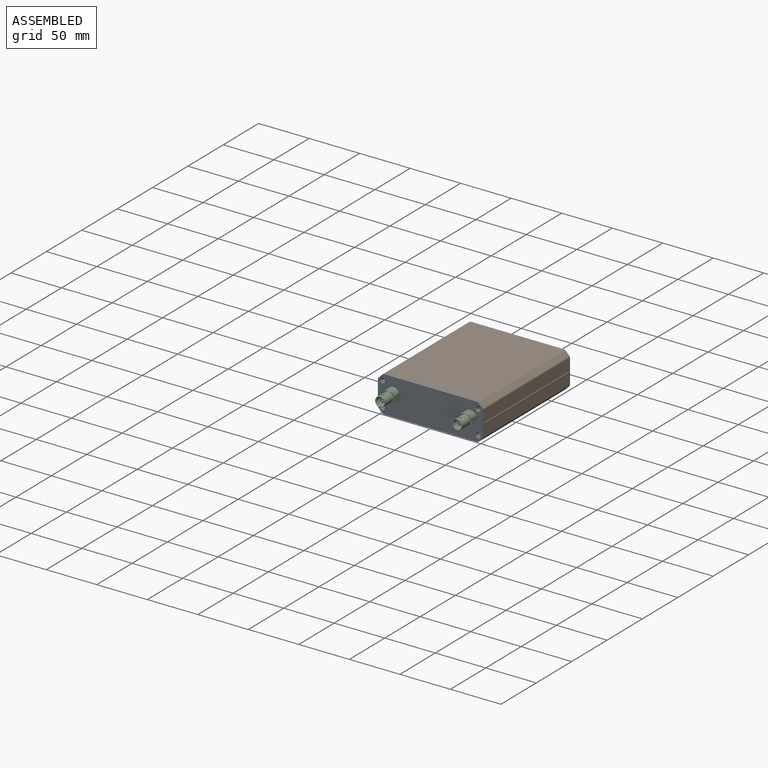
[diagram: assembled view]
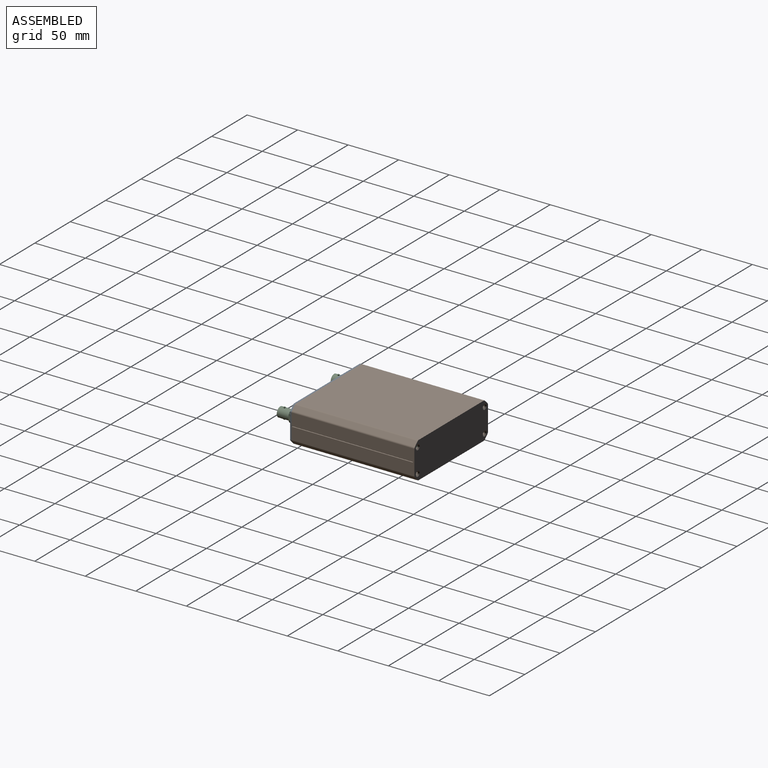
[diagram: assembled view, second angle]
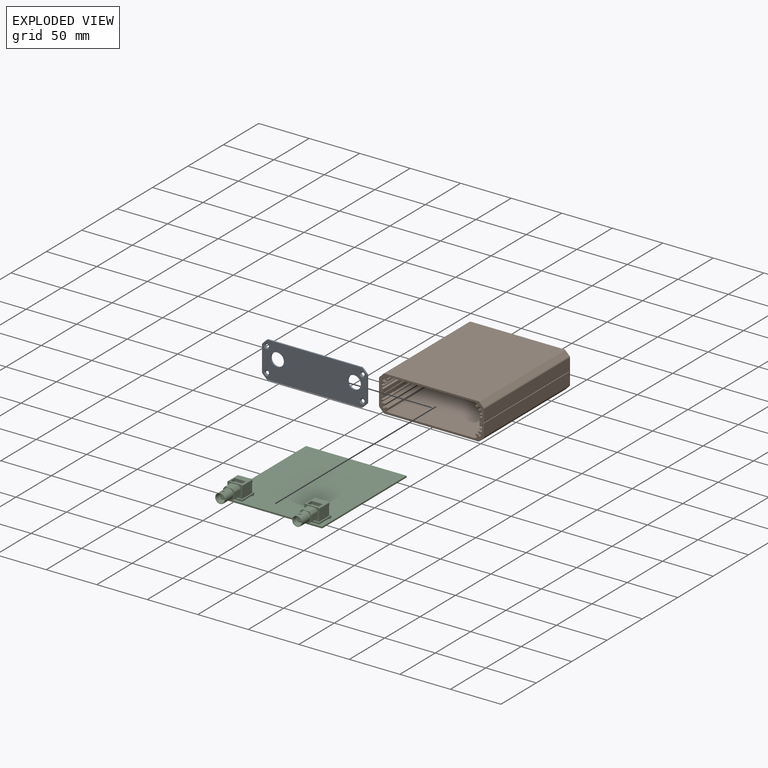
[diagram: exploded view]
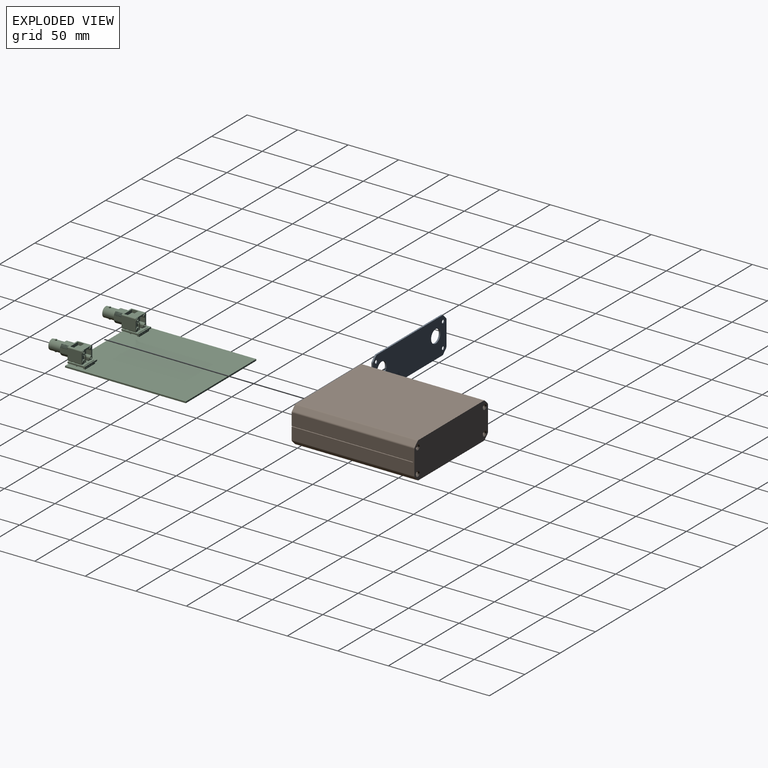
[diagram: exploded view, second angle]
FCSTD DOCUMENT  (FreeCAD 1.0R39319 (Git))
Label: K93-10436-H7-L120_reference_BNC_slot1_up
License: All rights reserved
LicenseURL: https://en.wikipedia.org/wiki/All_rights_reserved
objects: App::FeaturePython×7, App::Link×3, Assembly::JointGroup×1, Assembly::AssemblyObject×1
EXTERNAL_REF file=K93-10436-H7-L120.FCStd obj=K93_120
EXTERNAL_REF file=Reference_BNC.FCStd obj=Reference_BNC_1
EXTERNAL_REF file=K93-10436-H7-L120_frontpanel_BNC_slot1_up.FCStd obj=Body

FEATURE [App::Link] K93_120  label="K93-120"
  LinkPlacement = pos=(0,127.688,112.312) rot=(1,0,0;1.5708rad)
  LinkedObject = -> <external K93-10436-H7-L120.FCStd>#K93_120
  Placement = pos=(0,127.688,112.312) rot=(1,0,0;1.5708rad)
FEATURE [App::FeaturePython] GroundedJoint  # Assembly grounded joint (typed FeaturePython)
  ObjectToGround = -> K93_120
  Placement = pos=(0,127.688,112.312) rot=(1,0,0;1.5708rad)
FEATURE [App::Link] Reference_BNC_1  label="Reference_BNC 1"
  LinkPlacement = pos=(2.87919,7.68808,111.34) rot=(0.99808,0,0;0rad)
  LinkedObject = -> <external Reference_BNC.FCStd>#Reference_BNC_1
  Placement = pos=(2.87919,7.68808,111.34) rot=(0.99808,0,0;0rad)
FEATURE [App::FeaturePython] Joint  label="Distance"  # Assembly joint (typed FeaturePython)
  Activated = true
  AngleMax = 0
  AngleMin = 0
  Detach1 = false
  Detach2 = false
  Distance = -0.2
  Distance2 = 0
  EnableAngleMax = false
  EnableAngleMin = false
  EnableLengthMax = false
  EnableLengthMin = false
  JointType = 5 (Distance)
  LengthMax = 0
  LengthMin = 0
  Offset2 = pos=(0,0,0) rot=(0,0,1;3.14159rad)
  Placement1 = pos=(-50,10.1,0) rot=(0,-1,0;1.5708rad)
  Placement2 = pos=(-49.8,1.8e-15,0.755) rot=(-0.57735,0.57735,0.57735;4.18879rad)
  Reference1 = -> Assembly [K93_120.Part__Feature.Face87,K93_120.Part__Feature.Vertex159]
  Reference2 = -> Assembly [Reference_BNC_1.Part__Feature044.Face3,Reference_BNC_1.Part__Feature044.Vertex3]
FEATURE [App::FeaturePython] Joint001  label="Distance001"  # Assembly joint (typed FeaturePython)
  Activated = true
  AngleMax = 0
  AngleMin = 0
  Detach1 = false
  Detach2 = false
  Distance = -0.2
  Distance2 = 0
  EnableAngleMax = false
  EnableAngleMin = false
  EnableLengthMax = false
  EnableLengthMin = false
  JointType = 5 (Distance)
  LengthMax = 0
  LengthMin = 0
  Placement1 = pos=(1.58751,4.42551,60) rot=(0,0,1;0rad)
  Placement2 = pos=(4e-16,-59.8,0.755) rot=(0,-0.707107,0.707107;3.14159rad)
  Reference1 = -> Assembly [K93_120.Part__Feature.Face58,K93_120.Part__Feature.Vertex116]
  Reference2 = -> Assembly [Reference_BNC_1.Part__Feature044.Face1,Reference_BNC_1.Part__Feature044.Vertex3]
FEATURE [App::FeaturePython] Joint002  label="Distance002"  # Assembly joint (typed FeaturePython)
  Activated = true
  AngleMax = 0
  AngleMin = 0
  Detach1 = false
  Detach2 = false
  Distance = 0.25
  Distance2 = 0
  EnableAngleMax = false
  EnableAngleMin = false
  EnableLengthMax = false
  EnableLengthMin = false
  JointType = 5 (Distance)
  LengthMax = 0
  LengthMin = 0
  Placement1 = pos=(-48.85,11.1,0) rot=(-0.57735,-0.57735,0.57735;4.18879rad)
  Placement2 = pos=(0.00219562,0.0468163,1.51) rot=(0,0,1;0rad)
  Reference1 = -> Assembly [K93_120.Part__Feature.Face78,K93_120.Part__Feature.Vertex159]
  Reference2 = -> Assembly [Reference_BNC_1.Part__Feature044.Face5,Reference_BNC_1.Part__Feature044.Vertex3]
FEATURE [App::Link] Body  label="K93-10436-H7-L120_frontpanel_BNC_slot1_up"
  LinkPlacement = pos=(2.87919,-53.0619,120.006) rot=(1,0,0;1.5708rad)
  LinkedObject = -> <external K93-10436-H7-L120_frontpanel_BNC_slot1_up.FCStd>#Body
  Placement = pos=(2.87919,-53.0619,120.006) rot=(1,0,0;1.5708rad)
FEATURE [App::FeaturePython] Joint003  label="Distance003"  # Assembly joint (typed FeaturePython)
  Activated = true
  AngleMax = 0
  AngleMin = 0
  Detach1 = false
  Detach2 = false
  Distance = 0
  Distance2 = 0
  EnableAngleMax = false
  EnableAngleMin = false
  EnableLengthMax = false
  EnableLengthMin = false
  JointType = 5 (Distance)
  LengthMax = 0
  LengthMin = 0
  Offset1 = pos=(0,0,0) rot=(0,0,1;3.14159rad)
  Placement1 = pos=(1.58751,4.42551,60) rot=(0,0,1;3.14159rad)
  Placement2 = pos=(-0.100102,-0.213165,-0.75) rot=(0,0,1;0rad)
  Reference1 = -> Assembly [K93_120.Part__Feature001.Face58,K93_120.Part__Feature001.Edge72]
  Reference2 = -> Assembly [Body.Face29,Body.Vertex51]
FEATURE [App::FeaturePython] Joint004  label="Distance004"  # Assembly joint (typed FeaturePython)
  Activated = true
  AngleMax = 0
  AngleMin = 0
  Detach1 = false
  Detach2 = false
  Distance = 0
  Distance2 = 0
  EnableAngleMax = false
  EnableAngleMin = false
  EnableLengthMax = false
  EnableLengthMin = false
  JointType = 5 (Distance)
  LengthMax = 0
  LengthMin = 0
  Placement1 = pos=(52,11.7142,1.42e-14) rot=(0.57735,-0.57735,-0.57735;2.0944rad)
  Placement2 = pos=(-52,0,0) rot=(0.57735,0.57735,0.57735;2.0944rad)
  Reference1 = -> Assembly [K93_120.Part__Feature001.Face11,K93_120.Part__Feature001.Vertex34]
  Reference2 = -> Assembly [Body.Face11,Body.Face11]
FEATURE [App::FeaturePython] Joint005  label="Distance005"  # Assembly joint (typed FeaturePython)
  Activated = true
  AngleMax = 0
  AngleMin = 0
  Detach1 = false
  Detach2 = false
  Distance = 0
  Distance2 = 0
  EnableAngleMax = false
  EnableAngleMin = false
  EnableLengthMax = false
  EnableLengthMin = false
  JointType = 5 (Distance)
  LengthMax = 0
  LengthMin = 0
  Placement1 = pos=(1.2e-14,0,1.42e-14) rot=(0,-0.707107,-0.707107;3.14159rad)
  Placement2 = pos=(1.5006e-12,17.9943,7.1e-15) rot=(1,0,0;1.5708rad)
  Reference1 = -> Assembly [K93_120.Part__Feature001.Face57,K93_120.Part__Feature001.Vertex28]
  Reference2 = -> Assembly [Body.Face6,Body.Vertex5]
FEATURE [Assembly::JointGroup] Joints
  Group = -> [GroundedJoint,Joint,Joint001,Joint002,Joint003,Joint004,Joint005]
FEATURE [Assembly::AssemblyObject] Assembly
  Group = -> [Joints,K93_120,GroundedJoint,Reference_BNC_1,Joint,Joint001,Joint002,Body,Joint003,Joint004,Joint005]
  Origin = -> Origin
  Type = Assembly

RESOLVED EXTERNAL PARTS (link-assembly join: the EXTERNAL_REF files above that resolve inside this repo's crawl, each included once):
---- part K93-10436-H7-L120_frontpanel_BNC_slot1_up.FCStd = doc fcstd_177c3beef5ad ----
FCSTD DOCUMENT  (FreeCAD 1.0R39319 (Git))
Label: K93-10436-H7-L120_frontpanel_BNC_slot1_up
License: All rights reserved
LicenseURL: https://en.wikipedia.org/wiki/All_rights_reserved
objects: Part::Feature×1, PartDesign::FeatureBase×1, Sketcher::SketchObject×1, PartDesign::Pocket×1, PartDesign::LinearPattern×1, PartDesign::Body×1
note: 11 computed .brp shape members not serialized (recipe doc carries the construction recipe); baked Part::Feature solids carry a one-line shape summary decoded from their .brp

FEATURE [Part::Feature] Part__Feature  label="K93-B"
  shape: bbox 104 x 35.99 x 1.5 mm, 34 faces (baked)
FEATURE [PartDesign::FeatureBase] BaseFeature
  BaseFeature = -> Part__Feature
  Suppressed = false
FEATURE [Sketcher::SketchObject] Sketch
  ArcFitTolerance = 1e-06
  AttachmentSupport = -> [BaseFeature]
  ExternalGeometry = -> [BaseFeature]
  FullyConstrained = true
  MakeInternals = false
  MapMode = 5
  Placement = pos=(0,0,0.75) rot=(0,0,1;0rad)
  sketch-geometry (1):
    g0: Circle CenterX=-36.82 CenterY=2.72573 CenterZ=0 NormalX=0 NormalY=0 NormalZ=1 AngleXU=0 Radius=6.5
  constraints (3):
    c: Diameter(g0) = 13
    c: Distance(g0,g-3) = 15.18
    c: Distance(g0,g-4) = 20.72
FEATURE [PartDesign::Pocket] Pocket
  BaseFeature = -> BaseFeature
  Direction = (0,0,-1)
  Length = 5
  Length2 = 5
  Profile = -> Sketch
  ReferenceAxis = -> Sketch [N_Axis]
  Refine = true
  Suppressed = false
  Type = 0
FEATURE [PartDesign::LinearPattern] LinearPattern
  BaseFeature = -> Pocket
  Direction = -> Sketch [H_Axis]
  Length = 76.2
  Mode = 0
  Occurrences = 2
  Offset = 76.2
  Originals = -> [Pocket]
  Refine = true
  Suppressed = false
  TransformMode = 0
FEATURE [PartDesign::Body] Body
  AllowCompound = false
  BaseFeature = -> Part__Feature
  Group = -> [BaseFeature,Sketch,Pocket,LinearPattern]
  Origin = -> Origin
  Tip = -> LinearPattern
